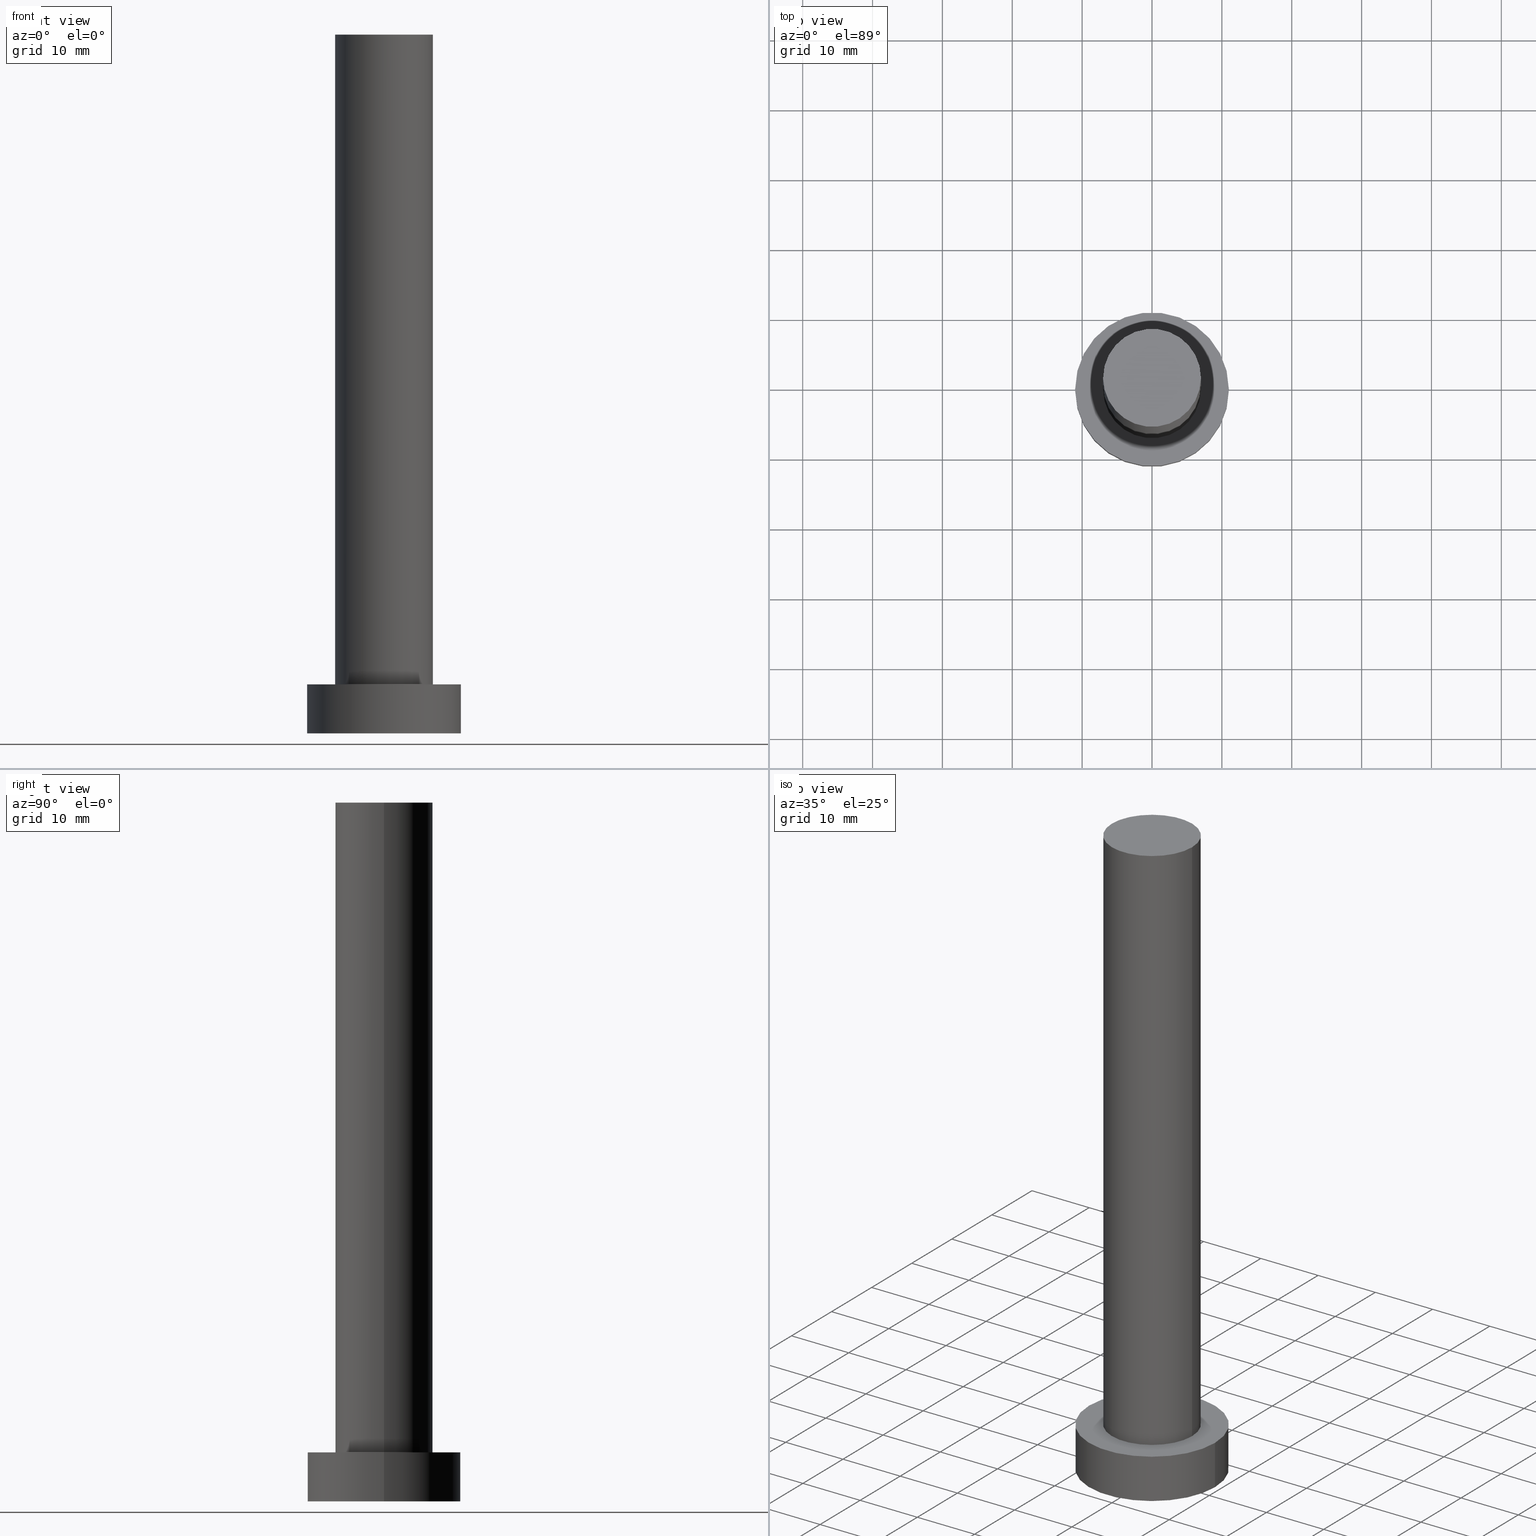
[diagram: canonical four-view strip — front | top / right | iso, engineering-drawing reading convention]
A machine part, canonical four-view strip (front | top / right | iso — engineering-drawing reading convention). The complete STEP part file that produces these views, byte-faithful:
ISO-10303-21;
HEADER;
FILE_DESCRIPTION (( 'STEP AP203' ),
    '1' );
FILE_NAME ('f88b.STEP',
    '2023-02-12T10:53:42',
    ( '' ),
    ( '' ),
    'SwSTEP 2.0',
    'SolidWorks 2019',
    '' );
FILE_SCHEMA (( 'CONFIG_CONTROL_DESIGN' ));
ENDSEC;

DATA;
#1 = CARTESIAN_POINT ( 'NONE',  ( 11.00000000000000000, 1.347111479062088405E-15, 7.000000000000000000 ) ) ;
#2 = PERSON_AND_ORGANIZATION_ROLE ( 'classification_officer' ) ;
#3 = PRODUCT_DEFINITION ( 'NEZN�M�', '', #136, #156 ) ;
#4 = AXIS2_PLACEMENT_3D ( 'NONE', #173, #196, #80 ) ;
#5 = DIRECTION ( 'NONE',  ( 0.000000000000000000, 0.000000000000000000, 1.000000000000000000 ) ) ;
#6 = FACE_OUTER_BOUND ( 'NONE', #187, .T. ) ;
#7 = COORDINATED_UNIVERSAL_TIME_OFFSET ( 1, 0, .AHEAD. ) ;
#8 = CIRCLE ( 'NONE', #152, 7.000000000000000888 ) ;
#9 = APPROVAL_ROLE ( '' ) ;
#10 = DIRECTION ( 'NONE',  ( 1.000000000000000000, 0.000000000000000000, 0.000000000000000000 ) ) ;
#11 = DATE_AND_TIME ( #182, #43 ) ;
#12 = CIRCLE ( 'NONE', #115, 11.00000000000000000 ) ;
#13 = EDGE_CURVE ( 'NONE', #150, #135, #188, .T. ) ;
#14 = ORIENTED_EDGE ( 'NONE', *, *, #181, .T. ) ;
#15 = PLANE ( 'NONE',  #144 ) ;
#16 = ORIENTED_EDGE ( 'NONE', *, *, #127, .F. ) ;
#17 = DIRECTION ( 'NONE',  ( -0.000000000000000000, -0.000000000000000000, -1.000000000000000000 ) ) ;
#18 = AXIS2_PLACEMENT_3D ( 'NONE', #42, #59, #197 ) ;
#19 = EDGE_CURVE ( 'NONE', #26, #49, #148, .T. ) ;
#20 = CARTESIAN_POINT ( 'NONE',  ( 7.000000000000000888, 8.572527594031472204E-16, 100.0000000000000000 ) ) ;
#21 = AXIS2_PLACEMENT_3D ( 'NONE', #189, #17, #171 ) ;
#22 = LINE ( 'NONE', #81, #226 ) ;
#23 = AXIS2_PLACEMENT_3D ( 'NONE', #212, #37, #120 ) ;
#24 = ADVANCED_FACE ( 'NONE', ( #133 ), #112, .T. ) ;
#25 = AXIS2_PLACEMENT_3D ( 'NONE', #63, #68, #101 ) ;
#26 = VERTEX_POINT ( 'NONE', #190 ) ;
#27 = CARTESIAN_POINT ( 'NONE',  ( 0.000000000000000000, 0.000000000000000000, 7.000000000000000000 ) ) ;
#28 = APPROVAL ( #83, 'NEUR�EN�' ) ;
#29 = ORIENTED_EDGE ( 'NONE', *, *, #13, .F. ) ;
#30 = DIRECTION ( 'NONE',  ( 1.000000000000000000, 0.000000000000000000, -0.000000000000000000 ) ) ;
#31 = ORIENTED_EDGE ( 'NONE', *, *, #158, .F. ) ;
#32 = DATE_AND_TIME ( #82, #79 ) ;
#33 = DIRECTION ( 'NONE',  ( -0.000000000000000000, -0.000000000000000000, -1.000000000000000000 ) ) ;
#34 = CC_DESIGN_SECURITY_CLASSIFICATION ( #128, ( #136 ) ) ;
#35 = ORIENTED_EDGE ( 'NONE', *, *, #13, .T. ) ;
#36 = SECURITY_CLASSIFICATION_LEVEL ( 'unclassified' ) ;
#37 = DIRECTION ( 'NONE',  ( -0.000000000000000000, -0.000000000000000000, -1.000000000000000000 ) ) ;
#38 = CIRCLE ( 'NONE', #213, 11.00000000000000000 ) ;
#39 = AXIS2_PLACEMENT_3D ( 'NONE', #147, #198, #67 ) ;
#40 = CC_DESIGN_DATE_AND_TIME_ASSIGNMENT ( #137, #172, ( #128 ) ) ;
#41 = DIRECTION ( 'NONE',  ( 1.000000000000000000, 0.000000000000000000, 0.000000000000000000 ) ) ;
#42 = CARTESIAN_POINT ( 'NONE',  ( 0.000000000000000000, 0.000000000000000000, 100.0000000000000000 ) ) ;
#43 = LOCAL_TIME ( 11, 53, 42.00000000000000000, #60 ) ;
#44 = PERSON_AND_ORGANIZATION ( #220, #47 ) ;
#45 = CC_DESIGN_PERSON_AND_ORGANIZATION_ASSIGNMENT ( #44, #102, ( #178 ) ) ;
#46 = APPLICATION_PROTOCOL_DEFINITION ( 'international standard', 'config_control_design', 1994, #223 ) ;
#47 = ORGANIZATION ( 'NEUR�EN�', 'NEUR�EN�', '' ) ;
#48 = ORIENTED_EDGE ( 'NONE', *, *, #250, .F. ) ;
#49 = VERTEX_POINT ( 'NONE', #191 ) ;
#50 = CARTESIAN_POINT ( 'NONE',  ( 0.000000000000000000, 0.000000000000000000, 7.000000000000000000 ) ) ;
#51 = VERTEX_POINT ( 'NONE', #175 ) ;
#52 = APPROVAL_STATUS ( 'not_yet_approved' ) ;
#53 = AXIS2_PLACEMENT_3D ( 'NONE', #211, #73, #232 ) ;
#54 = CALENDAR_DATE ( 2023, 12, 2 ) ;
#55 = LINE ( 'NONE', #206, #111 ) ;
#56 = AXIS2_PLACEMENT_3D ( 'NONE', #237, #240, #77 ) ;
#57 = FACE_BOUND ( 'NONE', #72, .T. ) ;
#58 = DIRECTION ( 'NONE',  ( -1.000000000000000000, 0.000000000000000000, 0.000000000000000000 ) ) ;
#59 = DIRECTION ( 'NONE',  ( -0.000000000000000000, -0.000000000000000000, -1.000000000000000000 ) ) ;
#60 = COORDINATED_UNIVERSAL_TIME_OFFSET ( 1, 0, .AHEAD. ) ;
#61 = ADVANCED_FACE ( 'NONE', ( #163 ), #245, .T. ) ;
#62 = CALENDAR_DATE ( 2023, 12, 2 ) ;
#63 = CARTESIAN_POINT ( 'NONE',  ( 0.000000000000000000, 0.000000000000000000, 100.0000000000000000 ) ) ;
#64 = PERSON_AND_ORGANIZATION ( #220, #47 ) ;
#65 = APPROVAL_STATUS ( 'not_yet_approved' ) ;
#66 = VERTEX_POINT ( 'NONE', #142 ) ;
#67 = DIRECTION ( 'NONE',  ( 1.000000000000000000, 0.000000000000000000, 0.000000000000000000 ) ) ;
#68 = DIRECTION ( 'NONE',  ( 0.000000000000000000, 0.000000000000000000, 1.000000000000000000 ) ) ;
#69 = DIRECTION ( 'NONE',  ( 1.000000000000000000, 0.000000000000000000, 0.000000000000000000 ) ) ;
#70 = ORIENTED_EDGE ( 'NONE', *, *, #250, .T. ) ;
#71 = ADVANCED_FACE ( 'NONE', ( #6 ), #216, .T. ) ;
#72 = EDGE_LOOP ( 'NONE', ( #109, #252 ) ) ;
#73 = DIRECTION ( 'NONE',  ( 0.000000000000000000, 0.000000000000000000, 1.000000000000000000 ) ) ;
#74 = ORIENTED_EDGE ( 'NONE', *, *, #19, .T. ) ;
#75 = EDGE_CURVE ( 'NONE', #150, #51, #22, .T. ) ;
#76 = PERSON_AND_ORGANIZATION ( #220, #47 ) ;
#77 = DIRECTION ( 'NONE',  ( 1.000000000000000000, 0.000000000000000000, 0.000000000000000000 ) ) ;
#78 = VECTOR ( 'NONE', #117, 1000.000000000000000 ) ;
#79 = LOCAL_TIME ( 11, 53, 42.00000000000000000, #7 ) ;
#80 = DIRECTION ( 'NONE',  ( 1.000000000000000000, 0.000000000000000000, 0.000000000000000000 ) ) ;
#81 = CARTESIAN_POINT ( 'NONE',  ( 11.00000000000000000, 1.347111479062088405E-15, 7.000000000000000000 ) ) ;
#82 = CALENDAR_DATE ( 2023, 12, 2 ) ;
#83 = APPROVAL_STATUS ( 'not_yet_approved' ) ;
#84 = APPLICATION_CONTEXT ( 'configuration controlled 3d designs of mechanical parts and assemblies' ) ;
#85 = AXIS2_PLACEMENT_3D ( 'NONE', #169, #254, #255 ) ;
#86 = ORIENTED_EDGE ( 'NONE', *, *, #217, .T. ) ;
#87 = PERSON_AND_ORGANIZATION_ROLE ( 'creator' ) ;
#88 = EDGE_LOOP ( 'NONE', ( #249, #16, #167, #70 ) ) ;
#89 = UNCERTAINTY_MEASURE_WITH_UNIT (LENGTH_MEASURE( 1.000000000000000082E-05 ), #241, 'distance_accuracy_value', 'NONE');
#90 = EDGE_CURVE ( 'NONE', #66, #205, #207, .T. ) ;
#91 = CARTESIAN_POINT ( 'NONE',  ( 0.000000000000000000, 0.000000000000000000, 0.000000000000000000 ) ) ;
#92 = CLOSED_SHELL ( 'NONE', ( #71, #24, #244, #227, #161, #218, #61 ) ) ;
#93 = ORIENTED_EDGE ( 'NONE', *, *, #90, .T. ) ;
#94 = EDGE_LOOP ( 'NONE', ( #93, #14 ) ) ;
#95 = COORDINATED_UNIVERSAL_TIME_OFFSET ( 1, 0, .AHEAD. ) ;
#96 = AXIS2_PLACEMENT_3D ( 'NONE', #50, #116, #10 ) ;
#97 =( GEOMETRIC_REPRESENTATION_CONTEXT ( 3 ) GLOBAL_UNCERTAINTY_ASSIGNED_CONTEXT ( ( #89 ) ) GLOBAL_UNIT_ASSIGNED_CONTEXT ( ( #241, #174, #140 ) ) REPRESENTATION_CONTEXT ( 'NONE', 'WORKASPACE' ) );
#98 = PLANE ( 'NONE',  #159 ) ;
#99 = CARTESIAN_POINT ( 'NONE',  ( 0.000000000000000000, 0.000000000000000000, 7.000000000000000000 ) ) ;
#100 = CARTESIAN_POINT ( 'NONE',  ( 0.000000000000000000, 0.000000000000000000, 0.000000000000000000 ) ) ;
#101 = DIRECTION ( 'NONE',  ( 1.000000000000000000, 0.000000000000000000, -0.000000000000000000 ) ) ;
#102 = PERSON_AND_ORGANIZATION_ROLE ( 'design_owner' ) ;
#103 = APPROVAL_DATE_TIME ( #11, #238 ) ;
#104 = LOCAL_TIME ( 11, 53, 42.00000000000000000, #95 ) ;
#105 = ORIENTED_EDGE ( 'NONE', *, *, #217, .F. ) ;
#106 = PERSON_AND_ORGANIZATION ( #220, #47 ) ;
#107 = CIRCLE ( 'NONE', #4, 7.000000000000000888 ) ;
#108 = EDGE_CURVE ( 'NONE', #205, #26, #155, .T. ) ;
#109 = ORIENTED_EDGE ( 'NONE', *, *, #122, .F. ) ;
#110 = CALENDAR_DATE ( 2023, 12, 2 ) ;
#111 = VECTOR ( 'NONE', #33, 1000.000000000000000 ) ;
#112 = CYLINDRICAL_SURFACE ( 'NONE', #21, 11.00000000000000000 ) ;
#113 = DATE_TIME_ROLE ( 'creation_date' ) ;
#114 = FACE_OUTER_BOUND ( 'NONE', #203, .T. ) ;
#115 = AXIS2_PLACEMENT_3D ( 'NONE', #100, #5, #41 ) ;
#116 = DIRECTION ( 'NONE',  ( 0.000000000000000000, 0.000000000000000000, 1.000000000000000000 ) ) ;
#117 = DIRECTION ( 'NONE',  ( -0.000000000000000000, -0.000000000000000000, -1.000000000000000000 ) ) ;
#118 = PERSON_AND_ORGANIZATION_ROLE ( 'creator' ) ;
#119 = CARTESIAN_POINT ( 'NONE',  ( 7.000000000000000888, 8.572527594031472204E-16, 100.0000000000000000 ) ) ;
#120 = DIRECTION ( 'NONE',  ( -1.000000000000000000, 0.000000000000000000, 0.000000000000000000 ) ) ;
#121 = DIRECTION ( 'NONE',  ( 0.000000000000000000, 0.000000000000000000, 1.000000000000000000 ) ) ;
#122 = EDGE_CURVE ( 'NONE', #49, #26, #8, .T. ) ;
#123 = CC_DESIGN_PERSON_AND_ORGANIZATION_ASSIGNMENT ( #76, #2, ( #128 ) ) ;
#124 = CC_DESIGN_APPROVAL ( #238, ( #3 ) ) ;
#125 = ORIENTED_EDGE ( 'NONE', *, *, #90, .F. ) ;
#126 = DATE_AND_TIME ( #110, #242 ) ;
#127 = EDGE_CURVE ( 'NONE', #135, #150, #38, .T. ) ;
#128 = SECURITY_CLASSIFICATION ( '', '', #36 ) ;
#129 = ORIENTED_EDGE ( 'NONE', *, *, #127, .T. ) ;
#130 = ORIENTED_EDGE ( 'NONE', *, *, #122, .T. ) ;
#131 = CARTESIAN_POINT ( 'NONE',  ( 0.000000000000000000, 0.000000000000000000, 7.000000000000000000 ) ) ;
#132 = CC_DESIGN_PERSON_AND_ORGANIZATION_ASSIGNMENT ( #106, #118, ( #136 ) ) ;
#133 = FACE_OUTER_BOUND ( 'NONE', #170, .T. ) ;
#134 = LINE ( 'NONE', #192, #219 ) ;
#135 = VERTEX_POINT ( 'NONE', #138 ) ;
#136 = PRODUCT_DEFINITION_FORMATION_WITH_SPECIFIED_SOURCE ( 'LIBOVOLN�', '', #178, .NOT_KNOWN. ) ;
#137 = DATE_AND_TIME ( #54, #104 ) ;
#138 = CARTESIAN_POINT ( 'NONE',  ( -11.00000000000000000, 0.000000000000000000, 7.000000000000000000 ) ) ;
#139 = EDGE_CURVE ( 'NONE', #135, #209, #134, .T. ) ;
#140 =( NAMED_UNIT ( * ) SI_UNIT ( $, .STERADIAN. ) SOLID_ANGLE_UNIT ( ) );
#141 = CARTESIAN_POINT ( 'NONE',  ( -11.00000000000000000, 0.000000000000000000, 0.000000000000000000 ) ) ;
#142 = CARTESIAN_POINT ( 'NONE',  ( -7.000000000000000888, 0.000000000000000000, 100.0000000000000000 ) ) ;
#143 = DIRECTION ( 'NONE',  ( -0.000000000000000000, -0.000000000000000000, -1.000000000000000000 ) ) ;
#144 = AXIS2_PLACEMENT_3D ( 'NONE', #91, #253, #30 ) ;
#145 = DATE_AND_TIME ( #62, #165 ) ;
#146 = APPLICATION_PROTOCOL_DEFINITION ( 'international standard', 'config_control_design', 1994, #84 ) ;
#147 = CARTESIAN_POINT ( 'NONE',  ( 0.000000000000000000, 0.000000000000000000, 0.000000000000000000 ) ) ;
#148 = CIRCLE ( 'NONE', #96, 7.000000000000000888 ) ;
#149 = CC_DESIGN_APPROVAL ( #28, ( #128 ) ) ;
#150 = VERTEX_POINT ( 'NONE', #1 ) ;
#151 = PERSON_AND_ORGANIZATION ( #220, #47 ) ;
#152 = AXIS2_PLACEMENT_3D ( 'NONE', #131, #251, #204 ) ;
#153 = ORIENTED_EDGE ( 'NONE', *, *, #108, .F. ) ;
#154 = PRODUCT_RELATED_PRODUCT_CATEGORY ( 'detail', '', ( #178 ) ) ;
#155 = LINE ( 'NONE', #119, #78 ) ;
#156 = DESIGN_CONTEXT ( 'detailed design', #84, 'design' ) ;
#157 = PERSON_AND_ORGANIZATION_ROLE ( 'design_supplier' ) ;
#158 = EDGE_CURVE ( 'NONE', #66, #49, #55, .T. ) ;
#159 = AXIS2_PLACEMENT_3D ( 'NONE', #176, #121, #215 ) ;
#160 = FACE_OUTER_BOUND ( 'NONE', #88, .T. ) ;
#161 = ADVANCED_FACE ( 'NONE', ( #114 ), #15, .F. ) ;
#162 = SHAPE_DEFINITION_REPRESENTATION ( #236, #194 ) ;
#163 = FACE_OUTER_BOUND ( 'NONE', #94, .T. ) ;
#164 = COORDINATED_UNIVERSAL_TIME_OFFSET ( 1, 0, .AHEAD. ) ;
#165 = LOCAL_TIME ( 11, 53, 42.00000000000000000, #164 ) ;
#166 = DIRECTION ( 'NONE',  ( -0.000000000000000000, -0.000000000000000000, -1.000000000000000000 ) ) ;
#167 = ORIENTED_EDGE ( 'NONE', *, *, #139, .T. ) ;
#168 = CC_DESIGN_PERSON_AND_ORGANIZATION_ASSIGNMENT ( #151, #87, ( #3 ) ) ;
#169 = CARTESIAN_POINT ( 'NONE',  ( 0.000000000000000000, 0.000000000000000000, 7.000000000000000000 ) ) ;
#170 = EDGE_LOOP ( 'NONE', ( #29, #224, #86, #201 ) ) ;
#171 = DIRECTION ( 'NONE',  ( -1.000000000000000000, 0.000000000000000000, 0.000000000000000000 ) ) ;
#172 = DATE_TIME_ROLE ( 'classification_date' ) ;
#173 = CARTESIAN_POINT ( 'NONE',  ( 0.000000000000000000, 0.000000000000000000, 100.0000000000000000 ) ) ;
#174 =( NAMED_UNIT ( * ) PLANE_ANGLE_UNIT ( ) SI_UNIT ( $, .RADIAN. ) );
#175 = CARTESIAN_POINT ( 'NONE',  ( 11.00000000000000000, 1.347111479062088405E-15, 0.000000000000000000 ) ) ;
#176 = CARTESIAN_POINT ( 'NONE',  ( 0.000000000000000000, 0.000000000000000000, 7.000000000000000000 ) ) ;
#177 = FACE_OUTER_BOUND ( 'NONE', #230, .T. ) ;
#178 = PRODUCT ( 'f88b', 'f88b', '', ( #243 ) ) ;
#179 = FACE_OUTER_BOUND ( 'NONE', #225, .T. ) ;
#180 = MANIFOLD_SOLID_BREP ( 'P�idat vysunut�m3', #92 ) ;
#181 = EDGE_CURVE ( 'NONE', #205, #66, #107, .T. ) ;
#182 = CALENDAR_DATE ( 2023, 12, 2 ) ;
#183 = ORIENTED_EDGE ( 'NONE', *, *, #108, .T. ) ;
#184 = COORDINATED_UNIVERSAL_TIME_OFFSET ( 1, 0, .AHEAD. ) ;
#185 = ORIENTED_EDGE ( 'NONE', *, *, #181, .F. ) ;
#186 = DIRECTION ( 'NONE',  ( -0.000000000000000000, -0.000000000000000000, -1.000000000000000000 ) ) ;
#187 = EDGE_LOOP ( 'NONE', ( #185, #183, #74, #31 ) ) ;
#188 = CIRCLE ( 'NONE', #85, 11.00000000000000000 ) ;
#189 = CARTESIAN_POINT ( 'NONE',  ( 0.000000000000000000, 0.000000000000000000, 7.000000000000000000 ) ) ;
#190 = CARTESIAN_POINT ( 'NONE',  ( 7.000000000000000888, 8.572527594031472204E-16, 7.000000000000000000 ) ) ;
#191 = CARTESIAN_POINT ( 'NONE',  ( -7.000000000000000888, 0.000000000000000000, 7.000000000000000000 ) ) ;
#192 = CARTESIAN_POINT ( 'NONE',  ( -11.00000000000000000, 0.000000000000000000, 7.000000000000000000 ) ) ;
#193 = CYLINDRICAL_SURFACE ( 'NONE', #208, 11.00000000000000000 ) ;
#194 = ADVANCED_BREP_SHAPE_REPRESENTATION ( 'f88b', ( #180, #39 ), #97 ) ;
#195 = CC_DESIGN_DATE_AND_TIME_ASSIGNMENT ( #32, #113, ( #3 ) ) ;
#196 = DIRECTION ( 'NONE',  ( 0.000000000000000000, 0.000000000000000000, 1.000000000000000000 ) ) ;
#197 = DIRECTION ( 'NONE',  ( -1.000000000000000000, 0.000000000000000000, 0.000000000000000000 ) ) ;
#198 = DIRECTION ( 'NONE',  ( 0.000000000000000000, 0.000000000000000000, 1.000000000000000000 ) ) ;
#199 = APPROVAL_DATE_TIME ( #126, #202 ) ;
#200 = APPROVAL_PERSON_ORGANIZATION ( #64, #28, #9 ) ;
#201 = ORIENTED_EDGE ( 'NONE', *, *, #139, .F. ) ;
#202 = APPROVAL ( #52, 'NEUR�EN�' ) ;
#203 = EDGE_LOOP ( 'NONE', ( #48, #105 ) ) ;
#204 = DIRECTION ( 'NONE',  ( 1.000000000000000000, 0.000000000000000000, 0.000000000000000000 ) ) ;
#205 = VERTEX_POINT ( 'NONE', #20 ) ;
#206 = CARTESIAN_POINT ( 'NONE',  ( -7.000000000000000888, 0.000000000000000000, 100.0000000000000000 ) ) ;
#207 = CIRCLE ( 'NONE', #53, 7.000000000000000888 ) ;
#208 = AXIS2_PLACEMENT_3D ( 'NONE', #99, #143, #58 ) ;
#209 = VERTEX_POINT ( 'NONE', #141 ) ;
#210 = PERSON_AND_ORGANIZATION ( #220, #47 ) ;
#211 = CARTESIAN_POINT ( 'NONE',  ( 0.000000000000000000, 0.000000000000000000, 100.0000000000000000 ) ) ;
#212 = CARTESIAN_POINT ( 'NONE',  ( 0.000000000000000000, 0.000000000000000000, 100.0000000000000000 ) ) ;
#213 = AXIS2_PLACEMENT_3D ( 'NONE', #27, #229, #69 ) ;
#214 = CC_DESIGN_PERSON_AND_ORGANIZATION_ASSIGNMENT ( #210, #157, ( #136 ) ) ;
#215 = DIRECTION ( 'NONE',  ( 1.000000000000000000, 0.000000000000000000, -0.000000000000000000 ) ) ;
#216 = CYLINDRICAL_SURFACE ( 'NONE', #18, 7.000000000000000888 ) ;
#217 = EDGE_CURVE ( 'NONE', #51, #209, #247, .T. ) ;
#218 = ADVANCED_FACE ( 'NONE', ( #177 ), #235, .T. ) ;
#219 = VECTOR ( 'NONE', #186, 1000.000000000000000 ) ;
#220 = PERSON ( 'NEUR�EN�', 'NEUR�EN�', 'NEUR�EN�', ('NEUR�EN�'), ('NEUR�EN�'), ('NEUR�EN�') ) ;
#221 = CC_DESIGN_APPROVAL ( #202, ( #136 ) ) ;
#222 = APPROVAL_ROLE ( '' ) ;
#223 = APPLICATION_CONTEXT ( 'configuration controlled 3d designs of mechanical parts and assemblies' ) ;
#224 = ORIENTED_EDGE ( 'NONE', *, *, #75, .T. ) ;
#225 = EDGE_LOOP ( 'NONE', ( #129, #35 ) ) ;
#226 = VECTOR ( 'NONE', #166, 1000.000000000000000 ) ;
#227 = ADVANCED_FACE ( 'NONE', ( #57, #179 ), #98, .T. ) ;
#228 = ORIENTED_EDGE ( 'NONE', *, *, #158, .T. ) ;
#229 = DIRECTION ( 'NONE',  ( 0.000000000000000000, 0.000000000000000000, 1.000000000000000000 ) ) ;
#230 = EDGE_LOOP ( 'NONE', ( #153, #125, #228, #130 ) ) ;
#231 = PERSON_AND_ORGANIZATION ( #220, #47 ) ;
#232 = DIRECTION ( 'NONE',  ( 1.000000000000000000, 0.000000000000000000, 0.000000000000000000 ) ) ;
#233 = APPROVAL_PERSON_ORGANIZATION ( #231, #202, #234 ) ;
#234 = APPROVAL_ROLE ( '' ) ;
#235 = CYLINDRICAL_SURFACE ( 'NONE', #23, 7.000000000000000888 ) ;
#236 = PRODUCT_DEFINITION_SHAPE ( 'NONE', 'NONE',  #3 ) ;
#237 = CARTESIAN_POINT ( 'NONE',  ( 0.000000000000000000, 0.000000000000000000, 0.000000000000000000 ) ) ;
#238 = APPROVAL ( #65, 'NEUR�EN�' ) ;
#239 = APPROVAL_PERSON_ORGANIZATION ( #248, #238, #222 ) ;
#240 = DIRECTION ( 'NONE',  ( 0.000000000000000000, 0.000000000000000000, 1.000000000000000000 ) ) ;
#241 =( LENGTH_UNIT ( ) NAMED_UNIT ( * ) SI_UNIT ( .MILLI., .METRE. ) );
#242 = LOCAL_TIME ( 11, 53, 42.00000000000000000, #184 ) ;
#243 = MECHANICAL_CONTEXT ( 'NONE', #223, 'mechanical' ) ;
#244 = ADVANCED_FACE ( 'NONE', ( #160 ), #193, .T. ) ;
#245 = PLANE ( 'NONE',  #25 ) ;
#246 = APPROVAL_DATE_TIME ( #145, #28 ) ;
#247 = CIRCLE ( 'NONE', #56, 11.00000000000000000 ) ;
#248 = PERSON_AND_ORGANIZATION ( #220, #47 ) ;
#249 = ORIENTED_EDGE ( 'NONE', *, *, #75, .F. ) ;
#250 = EDGE_CURVE ( 'NONE', #209, #51, #12, .T. ) ;
#251 = DIRECTION ( 'NONE',  ( 0.000000000000000000, 0.000000000000000000, 1.000000000000000000 ) ) ;
#252 = ORIENTED_EDGE ( 'NONE', *, *, #19, .F. ) ;
#253 = DIRECTION ( 'NONE',  ( 0.000000000000000000, 0.000000000000000000, 1.000000000000000000 ) ) ;
#254 = DIRECTION ( 'NONE',  ( 0.000000000000000000, 0.000000000000000000, 1.000000000000000000 ) ) ;
#255 = DIRECTION ( 'NONE',  ( 1.000000000000000000, 0.000000000000000000, 0.000000000000000000 ) ) ;
ENDSEC;
END-ISO-10303-21;
